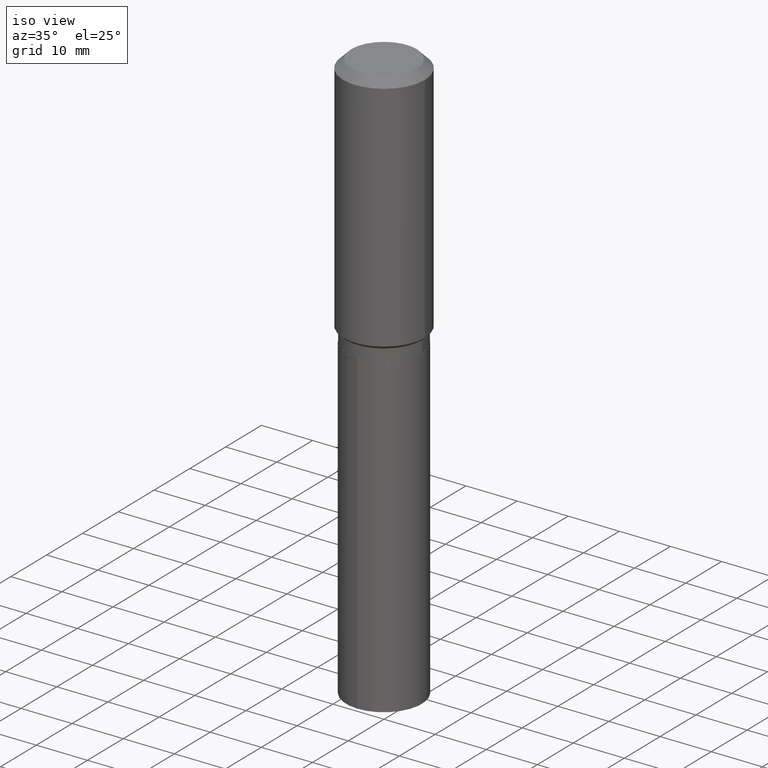
[diagram: clean part render]
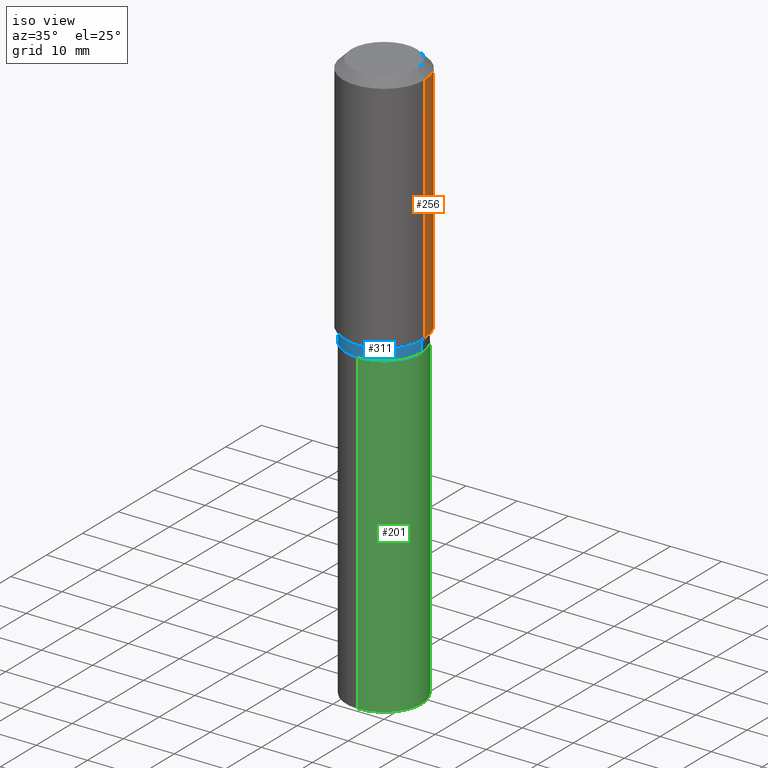
[diagram: same view with three faces highlighted in distinct colors, each labeled with its STEP entity id]
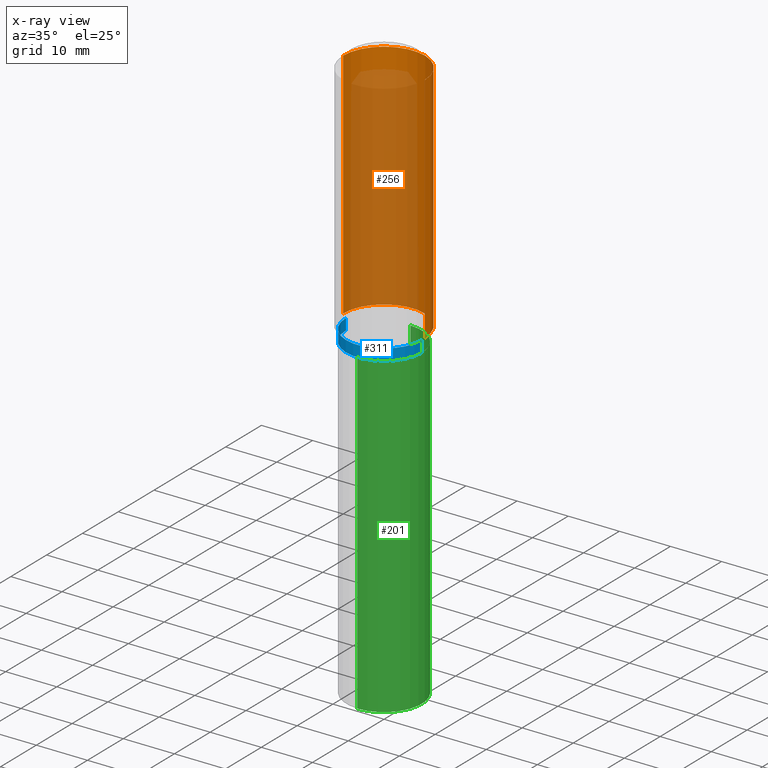
[diagram: x-ray of the same camera — body ghosted, the three highlighted faces saturated]
A machine part, iso view with three faces highlighted in distinct colors.
The next image is the same camera in x-ray (body ghosted, the three faces saturated) — at least one of them is partly hidden behind the body in this view.
Their STEP definitions:

[orange] entity #256 — the highlighted cylindrical surface (partial cylindrical patch) has radius 7.9997 mm, axis along (-0, 0, 1).
#44 = DIRECTION ( 'NONE',  ( -2.445468806185136877E-29, 3.491481338843145188E-15, 1.000000000000000000 ) ) ;
#47 = CARTESIAN_POINT ( 'NONE',  ( -0.3149500000000002298, -4.247572240624702209E-15, -1.857499999999999041 ) ) ;
#51 = CARTESIAN_POINT ( 'NONE',  ( -0.3149500000000001743, 2.237854346276436774E-15, -1.549218606675783237E-29 ) ) ;
#55 = CARTESIAN_POINT ( 'NONE',  ( 1.540400801016026329E-30, -2.199284095337310135E-16, -0.06299000000000036514 ) ) ;
#59 = ORIENTED_EDGE ( 'NONE', *, *, #295, .T. ) ;
#60 = VECTOR ( 'NONE', #192, 39.37007874015748143 ) ;
#65 = DIRECTION ( 'NONE',  ( 1.000000000000000000, -6.982962677686266711E-15, 0.000000000000000000 ) ) ;
#68 = VECTOR ( 'NONE', #44, 39.37007874015748143 ) ;
#88 = CYLINDRICAL_SURFACE ( 'NONE', #373, 0.3149500000000001743 ) ;
#91 = DIRECTION ( 'NONE',  ( -2.445468806185136597E-29, 3.491481338843145583E-15, 1.000000000000000000 ) ) ;
#126 = LINE ( 'NONE', #163, #60 ) ;
#140 = DIRECTION ( 'NONE',  ( -2.445468806185136597E-29, 3.491481338843145583E-15, 1.000000000000000000 ) ) ;
#147 = ORIENTED_EDGE ( 'NONE', *, *, #300, .F. ) ;
#160 = CARTESIAN_POINT ( 'NONE',  ( -0.3149500000000000077, -1.114823151940998237E-15, -0.06299000000000036514 ) ) ;
#163 = CARTESIAN_POINT ( 'NONE',  ( 0.3149500000000001743, -2.199284095337290660E-15, 1.535751875536930690E-29 ) ) ;
#168 = EDGE_LOOP ( 'NONE', ( #59, #467, #380, #147 ) ) ;
#192 = DIRECTION ( 'NONE',  ( -2.445468806185136877E-29, 3.491481338843145188E-15, 1.000000000000000000 ) ) ;
#196 = DIRECTION ( 'NONE',  ( 1.000000000000000000, -6.982962677686265922E-15, 4.876176775795935232E-29 ) ) ;
#199 = LINE ( 'NONE', #51, #68 ) ;
#204 = AXIS2_PLACEMENT_3D ( 'NONE', #461, #91, #350 ) ;
#226 = VERTEX_POINT ( 'NONE', #313 ) ;
#249 = EDGE_CURVE ( 'NONE', #281, #284, #199, .T. ) ;
#256 = ADVANCED_FACE ( 'NONE', ( #418 ), #88, .T. ) ;
#270 = CARTESIAN_POINT ( 'NONE',  ( 0.000000000000000000, 0.000000000000000000, 0.000000000000000000 ) ) ;
#281 = VERTEX_POINT ( 'NONE', #47 ) ;
#284 = VERTEX_POINT ( 'NONE', #160 ) ;
#295 = EDGE_CURVE ( 'NONE', #226, #281, #322, .T. ) ;
#300 = EDGE_CURVE ( 'NONE', #226, #339, #126, .T. ) ;
#313 = CARTESIAN_POINT ( 'NONE',  ( 0.3149500000000002298, -8.684710682238430431E-15, -1.857499999999999041 ) ) ;
#322 = CIRCLE ( 'NONE', #204, 0.3149500000000002298 ) ;
#323 = CARTESIAN_POINT ( 'NONE',  ( 0.3149500000000000077, -2.419212504871020909E-15, -0.06299000000000036514 ) ) ;
#339 = VERTEX_POINT ( 'NONE', #323 ) ;
#350 = DIRECTION ( 'NONE',  ( 1.000000000000000000, -6.982962677686264344E-15, 0.000000000000000000 ) ) ;
#373 = AXIS2_PLACEMENT_3D ( 'NONE', #270, #430, #196 ) ;
#380 = ORIENTED_EDGE ( 'NONE', *, *, #381, .F. ) ;
#381 = EDGE_CURVE ( 'NONE', #339, #284, #444, .T. ) ;
#405 = AXIS2_PLACEMENT_3D ( 'NONE', #55, #140, #65 ) ;
#418 = FACE_OUTER_BOUND ( 'NONE', #168, .T. ) ;
#430 = DIRECTION ( 'NONE',  ( -2.445468806185136597E-29, 3.491481338843145583E-15, 1.000000000000000000 ) ) ;
#444 = CIRCLE ( 'NONE', #405, 0.3149500000000000077 ) ;
#461 = CARTESIAN_POINT ( 'NONE',  ( 4.542458307488888673E-29, -6.485426586901138982E-15, -1.857499999999999041 ) ) ;
#467 = ORIENTED_EDGE ( 'NONE', *, *, #249, .T. ) ;

[blue] entity #311 — the highlighted cylindrical surface (partial cylindrical patch) has radius 7.4003 mm, axis along (-0, 0, 1).
#20 = CARTESIAN_POINT ( 'NONE',  ( 4.812682610572347912E-29, -6.871235274843308626E-15, -1.967999999999999527 ) ) ;
#33 = DIRECTION ( 'NONE',  ( 1.000000000000000000, -6.982962677686267499E-15, 0.000000000000000000 ) ) ;
#45 = VERTEX_POINT ( 'NONE', #72 ) ;
#72 = CARTESIAN_POINT ( 'NONE',  ( 0.2913499999999999979, -8.602311722641732307E-15, -1.881099999999999328 ) ) ;
#76 = AXIS2_PLACEMENT_3D ( 'NONE', #20, #243, #167 ) ;
#77 = CIRCLE ( 'NONE', #237, 0.2913499999999999979 ) ;
#89 = CARTESIAN_POINT ( 'NONE',  ( 4.600171371314858476E-29, -6.567825546497838684E-15, -1.881099999999999328 ) ) ;
#109 = CARTESIAN_POINT ( 'NONE',  ( -0.2913499999999999979, -4.649364150033521384E-15, -1.881099999999999328 ) ) ;
#125 = CIRCLE ( 'NONE', #76, 0.2913499999999999979 ) ;
#127 = ORIENTED_EDGE ( 'NONE', *, *, #360, .T. ) ;
#133 = DIRECTION ( 'NONE',  ( 1.000000000000000000, -6.982962677686265922E-15, 4.876176775795935232E-29 ) ) ;
#135 = CARTESIAN_POINT ( 'NONE',  ( 0.000000000000000000, 0.000000000000000000, 0.000000000000000000 ) ) ;
#138 = DIRECTION ( 'NONE',  ( -2.445468806185136877E-29, 3.491481338843145188E-15, 1.000000000000000000 ) ) ;
#149 = EDGE_CURVE ( 'NONE', #161, #45, #77, .T. ) ;
#161 = VERTEX_POINT ( 'NONE', #109 ) ;
#167 = DIRECTION ( 'NONE',  ( 1.000000000000000000, -6.982962677686267499E-15, 0.000000000000000000 ) ) ;
#172 = CARTESIAN_POINT ( 'NONE',  ( -0.2913499999999999979, 2.070166260637051876E-15, -1.433131738545766651E-29 ) ) ;
#178 = EDGE_CURVE ( 'NONE', #447, #45, #337, .T. ) ;
#203 = CARTESIAN_POINT ( 'NONE',  ( 0.2913499999999999979, -8.905721450987203038E-15, -1.967999999999999527 ) ) ;
#237 = AXIS2_PLACEMENT_3D ( 'NONE', #89, #369, #33 ) ;
#243 = DIRECTION ( 'NONE',  ( -2.445468806185136597E-29, 3.491481338843145583E-15, 1.000000000000000000 ) ) ;
#266 = EDGE_LOOP ( 'NONE', ( #315, #127, #277, #385 ) ) ;
#277 = ORIENTED_EDGE ( 'NONE', *, *, #178, .T. ) ;
#280 = FACE_OUTER_BOUND ( 'NONE', #266, .T. ) ;
#283 = CARTESIAN_POINT ( 'NONE',  ( -0.2913499999999999979, -4.649364150033521384E-15, -1.967999999999999527 ) ) ;
#301 = CARTESIAN_POINT ( 'NONE',  ( 0.2913499999999999979, -2.034486176143893623E-15, 1.420674103628145772E-29 ) ) ;
#305 = VERTEX_POINT ( 'NONE', #283 ) ;
#306 = DIRECTION ( 'NONE',  ( -2.445468806185136877E-29, 3.491481338843145188E-15, 1.000000000000000000 ) ) ;
#311 = ADVANCED_FACE ( 'NONE', ( #280 ), #356, .T. ) ;
#315 = ORIENTED_EDGE ( 'NONE', *, *, #397, .F. ) ;
#337 = LINE ( 'NONE', #301, #471 ) ;
#347 = AXIS2_PLACEMENT_3D ( 'NONE', #135, #472, #133 ) ;
#356 = CYLINDRICAL_SURFACE ( 'NONE', #347, 0.2913499999999999979 ) ;
#360 = EDGE_CURVE ( 'NONE', #305, #447, #125, .T. ) ;
#362 = LINE ( 'NONE', #172, #462 ) ;
#369 = DIRECTION ( 'NONE',  ( -2.445468806185136597E-29, 3.491481338843145583E-15, 1.000000000000000000 ) ) ;
#385 = ORIENTED_EDGE ( 'NONE', *, *, #149, .F. ) ;
#397 = EDGE_CURVE ( 'NONE', #305, #161, #362, .T. ) ;
#447 = VERTEX_POINT ( 'NONE', #203 ) ;
#462 = VECTOR ( 'NONE', #138, 39.37007874015748143 ) ;
#471 = VECTOR ( 'NONE', #306, 39.37007874015748143 ) ;
#472 = DIRECTION ( 'NONE',  ( -2.445468806185136597E-29, 3.491481338843145583E-15, 1.000000000000000000 ) ) ;

[green] entity #201 — the highlighted cylindrical surface (partial cylindrical patch) has radius 7.4003 mm, axis along (-0, 0, 1).
#30 = CIRCLE ( 'NONE', #170, 0.2913499999999999979 ) ;
#63 = CARTESIAN_POINT ( 'NONE',  ( 2.070166260637159556E-15, 0.2913499999999845658, -4.412834182929588067 ) ) ;
#64 = EDGE_CURVE ( 'NONE', #66, #98, #236, .T. ) ;
#66 = VERTEX_POINT ( 'NONE', #224 ) ;
#80 = DIRECTION ( 'NONE',  ( -6.982962677686265922E-15, -1.000000000000000000, 3.750606478344620614E-15 ) ) ;
#84 = LINE ( 'NONE', #194, #255 ) ;
#93 = CARTESIAN_POINT ( 'NONE',  ( 1.079154912815724214E-28, -1.540718386847978114E-14, -4.412834182929587179 ) ) ;
#98 = VERTEX_POINT ( 'NONE', #217 ) ;
#121 = CARTESIAN_POINT ( 'NONE',  ( 4.813905344975440153E-29, -6.872981015512730130E-15, -1.968499999999999472 ) ) ;
#128 = CYLINDRICAL_SURFACE ( 'NONE', #431, 0.2913499999999999979 ) ;
#152 = VERTEX_POINT ( 'NONE', #445 ) ;
#156 = FACE_OUTER_BOUND ( 'NONE', #240, .T. ) ;
#170 = AXIS2_PLACEMENT_3D ( 'NONE', #93, #390, #455 ) ;
#194 = CARTESIAN_POINT ( 'NONE',  ( -2.034486176143845503E-15, -0.2913500000000068257, -1.968499999999998362 ) ) ;
#201 = ADVANCED_FACE ( 'NONE', ( #156 ), #128, .T. ) ;
#217 = CARTESIAN_POINT ( 'NONE',  ( 2.070166260637159950E-15, 0.2913499999999931145, -1.968500000000000583 ) ) ;
#224 = CARTESIAN_POINT ( 'NONE',  ( -2.034486176143845503E-15, -0.2913500000000068257, -1.968499999999998362 ) ) ;
#227 = DIRECTION ( 'NONE',  ( -2.445510039064079162E-29, 3.491422291013670313E-15, 1.000000000000000000 ) ) ;
#231 = ORIENTED_EDGE ( 'NONE', *, *, #273, .F. ) ;
#232 = EDGE_CURVE ( 'NONE', #152, #319, #30, .T. ) ;
#236 = CIRCLE ( 'NONE', #488, 0.2913499999999999979 ) ;
#238 = DIRECTION ( 'NONE',  ( -2.445510039064079162E-29, 3.491422291013670313E-15, 1.000000000000000000 ) ) ;
#240 = EDGE_LOOP ( 'NONE', ( #264, #419, #470, #231 ) ) ;
#255 = VECTOR ( 'NONE', #227, 39.37007874015748143 ) ;
#264 = ORIENTED_EDGE ( 'NONE', *, *, #232, .T. ) ;
#268 = CARTESIAN_POINT ( 'NONE',  ( 4.813905344975440153E-29, -6.872981015512730130E-15, -1.968499999999999472 ) ) ;
#273 = EDGE_CURVE ( 'NONE', #152, #66, #84, .T. ) ;
#276 = VECTOR ( 'NONE', #414, 39.37007874015748143 ) ;
#318 = DIRECTION ( 'NONE',  ( -6.982962677686265922E-15, -1.000000000000000000, 3.750606478344620614E-15 ) ) ;
#319 = VERTEX_POINT ( 'NONE', #63 ) ;
#378 = CARTESIAN_POINT ( 'NONE',  ( 2.070166260637099602E-15, 0.2913499999999931145, -1.968500000000000583 ) ) ;
#390 = DIRECTION ( 'NONE',  ( -2.445510039064079162E-29, 3.491422291013670313E-15, 1.000000000000000000 ) ) ;
#412 = DIRECTION ( 'NONE',  ( -2.445510039064079162E-29, 3.491422291013670313E-15, 1.000000000000000000 ) ) ;
#414 = DIRECTION ( 'NONE',  ( -2.445510039064079162E-29, 3.491422291013670313E-15, 1.000000000000000000 ) ) ;
#415 = LINE ( 'NONE', #378, #276 ) ;
#419 = ORIENTED_EDGE ( 'NONE', *, *, #448, .T. ) ;
#431 = AXIS2_PLACEMENT_3D ( 'NONE', #121, #238, #318 ) ;
#445 = CARTESIAN_POINT ( 'NONE',  ( -2.034486176143785155E-15, -0.2913500000000153745, -4.412834182929586291 ) ) ;
#448 = EDGE_CURVE ( 'NONE', #319, #98, #415, .T. ) ;
#455 = DIRECTION ( 'NONE',  ( -6.982962677686265922E-15, -1.000000000000000000, 3.750606478344620614E-15 ) ) ;
#470 = ORIENTED_EDGE ( 'NONE', *, *, #64, .F. ) ;
#488 = AXIS2_PLACEMENT_3D ( 'NONE', #268, #412, #80 ) ;